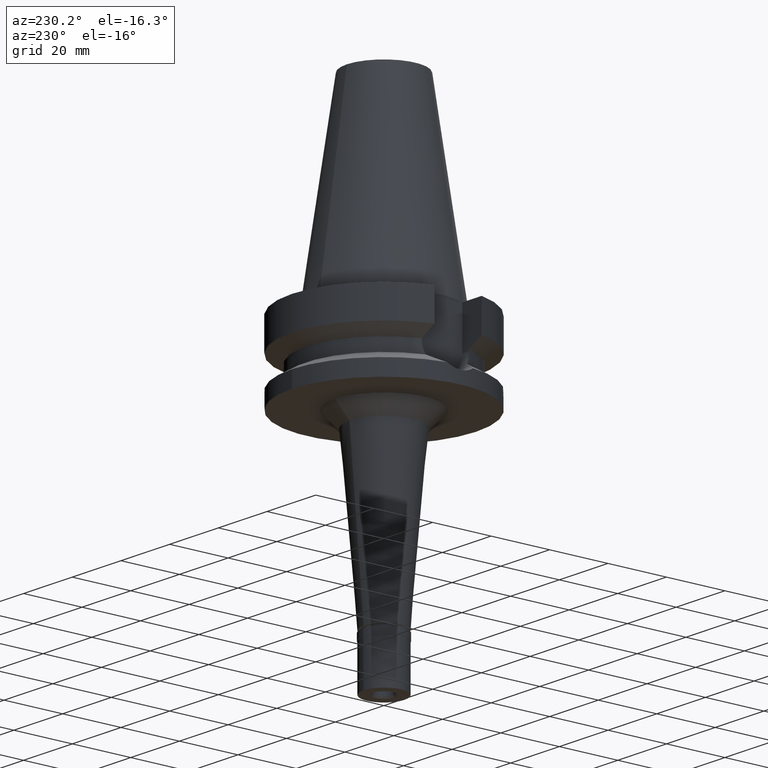
[diagram: clean part render]
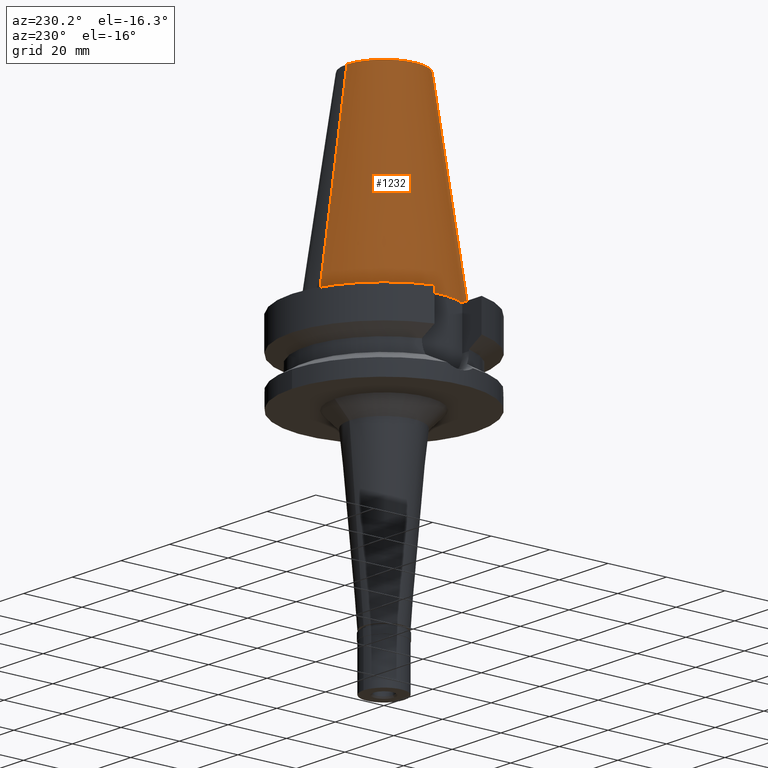
[diagram: same view with one face highlighted and labeled with its STEP entity id]
A machine part, auxiliary view. The second image highlights one B-rep face of the part: STEP entity #1232.
In plain terms, the highlighted conical surface has half-angle 8.297 deg.
Its self-contained STEP definition (entity closure, byte-faithful):
#170 = ORIENTED_EDGE ( 'NONE', *, *, #736, .T. ) ;
#173 = DIRECTION ( 'NONE',  ( 0.0000000000000000000, 0.0000000000000000000, -1.000000000000000000 ) ) ;
#289 = EDGE_CURVE ( 'NONE', #2780, #344, #863, .T. ) ;
#338 = DIRECTION ( 'NONE',  ( 0.0000000000000000000, 0.0000000000000000000, -1.000000000000000000 ) ) ;
#344 = VERTEX_POINT ( 'NONE', #2738 ) ;
#349 = FACE_OUTER_BOUND ( 'NONE', #1611, .T. ) ;
#357 = CARTESIAN_POINT ( 'NONE',  ( 0.0000000000000000000, 22.22500000000000142, 1.065814103639999827E-13 ) ) ;
#411 = EDGE_CURVE ( 'NONE', #2780, #1123, #1570, .T. ) ;
#533 = ORIENTED_EDGE ( 'NONE', *, *, #411, .F. ) ;
#544 = AXIS2_PLACEMENT_3D ( 'NONE', #1630, #1860, #1022 ) ;
#600 = DIRECTION ( 'NONE',  ( 0.0000000000000000000, -1.000000000000000000, 0.0000000000000000000 ) ) ;
#736 = EDGE_CURVE ( 'NONE', #344, #1993, #1868, .T. ) ;
#863 = CIRCLE ( 'NONE', #1339, 12.68766899429999917 ) ;
#879 = DIRECTION ( 'NONE',  ( 0.0000000000000000000, -0.1443043893539925626, -0.9895333461855498891 ) ) ;
#1022 = DIRECTION ( 'NONE',  ( 0.0000000000000000000, -1.000000000000000000, 0.0000000000000000000 ) ) ;
#1082 = CIRCLE ( 'NONE', #2769, 22.22500000000000142 ) ;
#1123 = VERTEX_POINT ( 'NONE', #2885 ) ;
#1195 = VECTOR ( 'NONE', #2757, 1000.000000000000114 ) ;
#1232 = ADVANCED_FACE ( 'NONE', ( #349 ), #2103, .T. ) ;
#1339 = AXIS2_PLACEMENT_3D ( 'NONE', #1793, #173, #2001 ) ;
#1392 = CARTESIAN_POINT ( 'NONE',  ( 0.0000000000000000000, 12.68766899429999917, 65.40000000000000568 ) ) ;
#1570 = LINE ( 'NONE', #2929, #1859 ) ;
#1611 = EDGE_LOOP ( 'NONE', ( #2148, #533, #2081, #170 ) ) ;
#1630 = CARTESIAN_POINT ( 'NONE',  ( 0.0000000000000000000, 1.625106302469000024E-14, 32.70000000000000284 ) ) ;
#1793 = CARTESIAN_POINT ( 'NONE',  ( 0.0000000000000000000, 1.625106302469000024E-14, 65.40000000000000568 ) ) ;
#1859 = VECTOR ( 'NONE', #879, 1000.000000000000114 ) ;
#1860 = DIRECTION ( 'NONE',  ( 0.0000000000000000000, 0.0000000000000000000, -1.000000000000000000 ) ) ;
#1868 = LINE ( 'NONE', #1392, #1195 ) ;
#1993 = VERTEX_POINT ( 'NONE', #357 ) ;
#2001 = DIRECTION ( 'NONE',  ( 0.0000000000000000000, -1.000000000000000000, 0.0000000000000000000 ) ) ;
#2081 = ORIENTED_EDGE ( 'NONE', *, *, #289, .T. ) ;
#2103 = CONICAL_SURFACE ( 'NONE', #544, 17.45633449714999941, 0.1448099680379422438 ) ;
#2113 = CARTESIAN_POINT ( 'NONE',  ( 0.0000000000000000000, -12.68766899429999917, 65.40000000000000568 ) ) ;
#2148 = ORIENTED_EDGE ( 'NONE', *, *, #2900, .F. ) ;
#2617 = CARTESIAN_POINT ( 'NONE',  ( 0.0000000000000000000, 1.625106302469000024E-14, 2.842170943039999687E-14 ) ) ;
#2738 = CARTESIAN_POINT ( 'NONE',  ( 0.0000000000000000000, 12.68766899429999917, 65.40000000000000568 ) ) ;
#2757 = DIRECTION ( 'NONE',  ( 0.0000000000000000000, 0.1443043893539925626, -0.9895333461855498891 ) ) ;
#2769 = AXIS2_PLACEMENT_3D ( 'NONE', #2617, #338, #600 ) ;
#2780 = VERTEX_POINT ( 'NONE', #2113 ) ;
#2885 = CARTESIAN_POINT ( 'NONE',  ( 0.0000000000000000000, -22.22500000000000142, 1.065814103639999827E-13 ) ) ;
#2900 = EDGE_CURVE ( 'NONE', #1123, #1993, #1082, .T. ) ;
#2929 = CARTESIAN_POINT ( 'NONE',  ( 0.0000000000000000000, -12.68766899429999917, 65.40000000000000568 ) ) ;